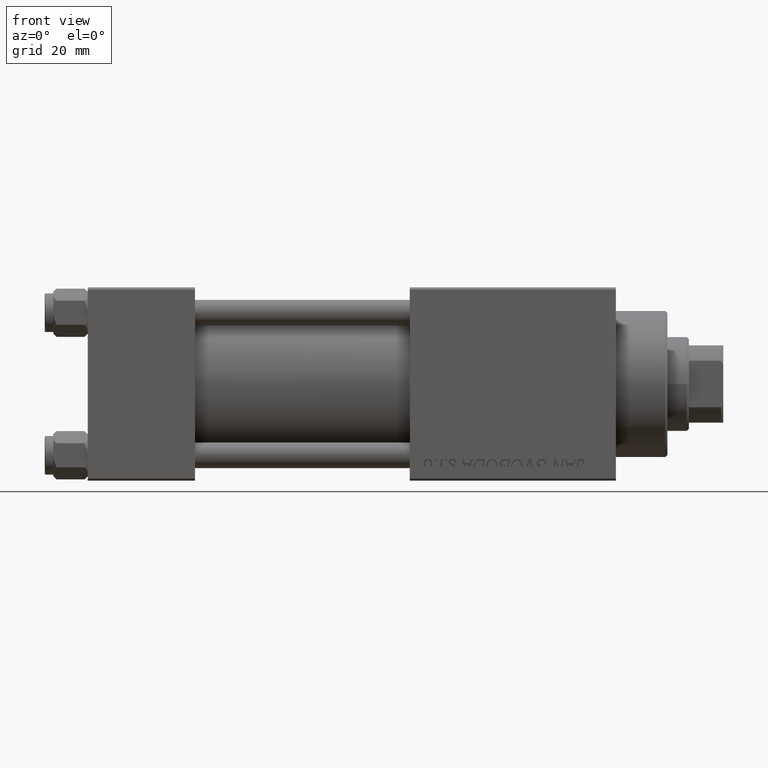
[diagram: clean part render]
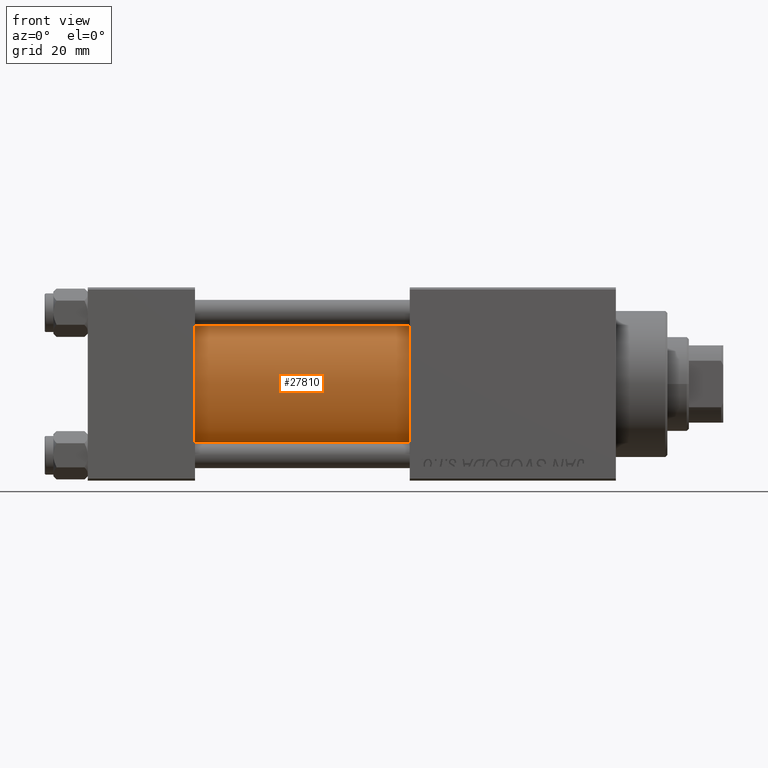
[diagram: same view with one face highlighted and labeled with its STEP entity id]
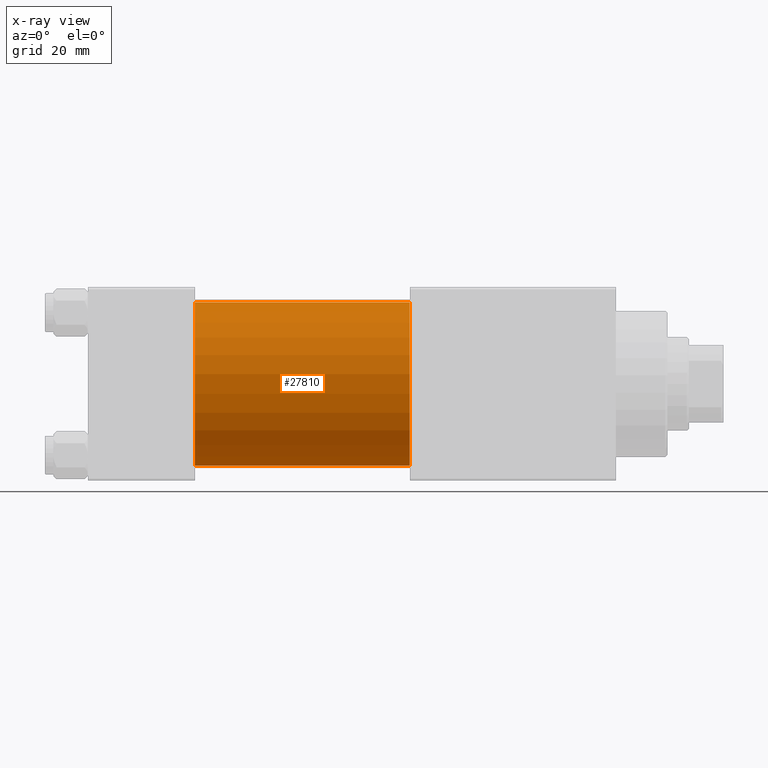
[diagram: x-ray of the same camera — body ghosted, the highlighted face saturated]
A machine part, front view. The second image highlights one B-rep face of the part: STEP entity #27810.
The next image is the same camera in x-ray: the body ghosted, the highlighted face saturated — about 0% of this face is hidden behind the body in this view.
In plain terms, the highlighted cylindrical surface (partial cylindrical patch) has radius 19 mm, axis along (-1, -0, -0).
Its self-contained STEP definition (entity closure, byte-faithful):
#65 = CARTESIAN_POINT ( 'NONE',  ( 75.00000000000001421, -2.602085213965210642E-15, 19.00000000000000000 ) ) ;
#208 = AXIS2_PLACEMENT_3D ( 'NONE', #9125, #32453, #28159 ) ;
#1066 = VERTEX_POINT ( 'NONE', #65 ) ;
#1231 = EDGE_CURVE ( 'NONE', #32616, #40239, #34526, .T. ) ;
#2474 = CARTESIAN_POINT ( 'NONE',  ( 75.00000000000001421, -2.752562955852396712E-16, -19.00000000000000000 ) ) ;
#3800 = EDGE_LOOP ( 'NONE', ( #32916, #16637, #6566, #23862 ) ) ;
#4020 = VECTOR ( 'NONE', #22625, 1000.000000000000000 ) ;
#6566 = ORIENTED_EDGE ( 'NONE', *, *, #26579, .T. ) ;
#8768 = CARTESIAN_POINT ( 'NONE',  ( 75.00000000000001421, -2.602085213965210642E-15, 0.000000000000000000 ) ) ;
#9025 = FACE_OUTER_BOUND ( 'NONE', #3800, .T. ) ;
#9125 = CARTESIAN_POINT ( 'NONE',  ( 25.00000000000000000, -2.602085213965210642E-15, 0.000000000000000000 ) ) ;
#10857 = CIRCLE ( 'NONE', #23856, 19.00000000000000000 ) ;
#13254 = EDGE_CURVE ( 'NONE', #1066, #32616, #10857, .T. ) ;
#14512 = AXIS2_PLACEMENT_3D ( 'NONE', #8768, #16877, #24526 ) ;
#15178 = DIRECTION ( 'NONE',  ( 0.000000000000000000, 0.000000000000000000, -1.000000000000000000 ) ) ;
#16430 = CIRCLE ( 'NONE', #208, 19.00000000000000000 ) ;
#16637 = ORIENTED_EDGE ( 'NONE', *, *, #13254, .F. ) ;
#16877 = DIRECTION ( 'NONE',  ( -1.000000000000000000, -0.000000000000000000, -0.000000000000000000 ) ) ;
#22625 = DIRECTION ( 'NONE',  ( -1.000000000000000000, -0.000000000000000000, -0.000000000000000000 ) ) ;
#23856 = AXIS2_PLACEMENT_3D ( 'NONE', #46354, #42795, #15178 ) ;
#23862 = ORIENTED_EDGE ( 'NONE', *, *, #40792, .T. ) ;
#24526 = DIRECTION ( 'NONE',  ( 0.000000000000000000, 0.000000000000000000, 1.000000000000000000 ) ) ;
#26579 = EDGE_CURVE ( 'NONE', #1066, #41855, #33134, .T. ) ;
#27810 = ADVANCED_FACE ( 'NONE', ( #9025 ), #28061, .T. ) ;
#28061 = CYLINDRICAL_SURFACE ( 'NONE', #14512, 19.00000000000000000 ) ;
#28159 = DIRECTION ( 'NONE',  ( 0.000000000000000000, 0.000000000000000000, 1.000000000000000000 ) ) ;
#29334 = CARTESIAN_POINT ( 'NONE',  ( 75.00000000000001421, -2.602085213965210642E-15, 19.00000000000000000 ) ) ;
#32453 = DIRECTION ( 'NONE',  ( 1.000000000000000000, -0.000000000000000000, 0.000000000000000000 ) ) ;
#32616 = VERTEX_POINT ( 'NONE', #34051 ) ;
#32888 = DIRECTION ( 'NONE',  ( -1.000000000000000000, -0.000000000000000000, -0.000000000000000000 ) ) ;
#32916 = ORIENTED_EDGE ( 'NONE', *, *, #1231, .F. ) ;
#33134 = LINE ( 'NONE', #29334, #46830 ) ;
#34051 = CARTESIAN_POINT ( 'NONE',  ( 75.00000000000001421, -2.752562955852396712E-16, -19.00000000000000000 ) ) ;
#34526 = LINE ( 'NONE', #2474, #4020 ) ;
#37021 = CARTESIAN_POINT ( 'NONE',  ( 25.00000000000000000, -2.602085213965210642E-15, 19.00000000000000000 ) ) ;
#40239 = VERTEX_POINT ( 'NONE', #46786 ) ;
#40792 = EDGE_CURVE ( 'NONE', #41855, #40239, #16430, .T. ) ;
#41855 = VERTEX_POINT ( 'NONE', #37021 ) ;
#42795 = DIRECTION ( 'NONE',  ( 1.000000000000000000, 0.000000000000000000, 0.000000000000000000 ) ) ;
#46354 = CARTESIAN_POINT ( 'NONE',  ( 75.00000000000001421, -2.602085213965210642E-15, 0.000000000000000000 ) ) ;
#46786 = CARTESIAN_POINT ( 'NONE',  ( 25.00000000000000000, -2.752562955852396712E-16, -19.00000000000000000 ) ) ;
#46830 = VECTOR ( 'NONE', #32888, 1000.000000000000000 ) ;